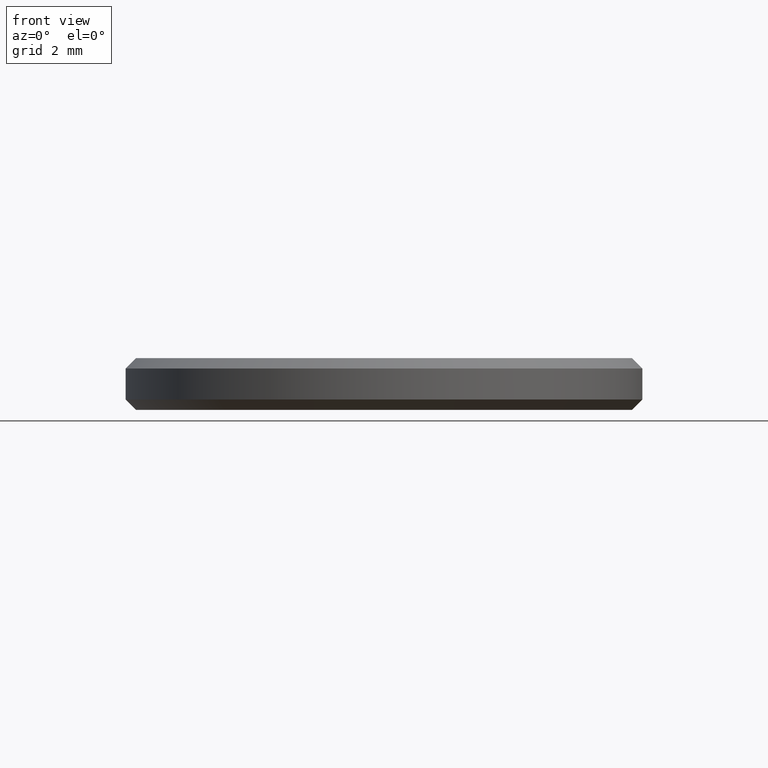
[diagram: clean part render]
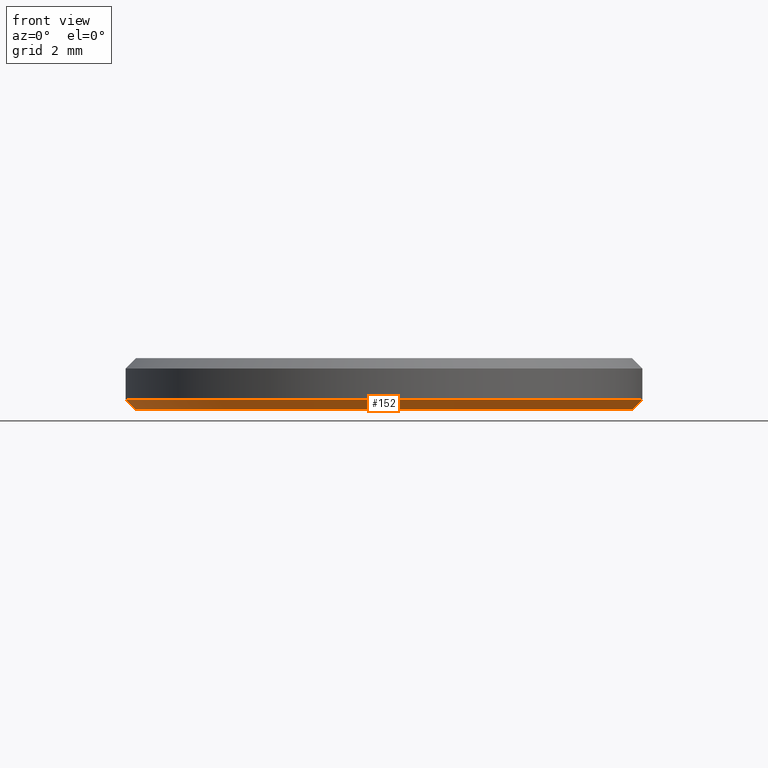
[diagram: same view with one face highlighted and labeled with its STEP entity id]
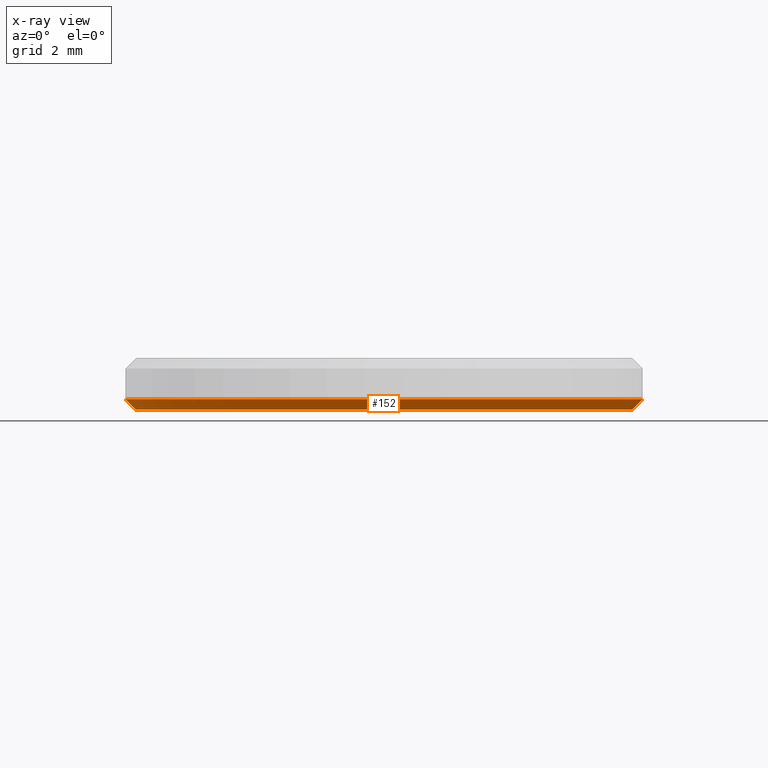
[diagram: x-ray of the same camera — body ghosted, the highlighted face saturated]
A machine part, front view. The second image highlights one B-rep face of the part: STEP entity #152.
The next image is the same camera in x-ray: the body ghosted, the highlighted face saturated — about 0% of this face is hidden behind the body in this view.
In plain terms, the highlighted conical surface has half-angle 45 deg.
Its self-contained STEP definition (entity closure, byte-faithful):
#2 = ORIENTED_EDGE ( 'NONE', *, *, #224, .F. ) ;
#3 = AXIS2_PLACEMENT_3D ( 'NONE', #187, #182, #12 ) ;
#12 = DIRECTION ( 'NONE',  ( 1.000000000000000000, 0.000000000000000000, 0.000000000000000000 ) ) ;
#14 = CARTESIAN_POINT ( 'NONE',  ( 0.000000000000000000, 0.000000000000000000, 0.1999999999999996503 ) ) ;
#17 = CARTESIAN_POINT ( 'NONE',  ( -4.799999999999999822, 6.000769315822029754E-16, 0.000000000000000000 ) ) ;
#22 = EDGE_CURVE ( 'NONE', #174, #156, #23, .T. ) ;
#23 = LINE ( 'NONE', #232, #231 ) ;
#27 = AXIS2_PLACEMENT_3D ( 'NONE', #14, #200, #88 ) ;
#48 = VERTEX_POINT ( 'NONE', #198 ) ;
#51 = CARTESIAN_POINT ( 'NONE',  ( 0.000000000000000000, 0.000000000000000000, 0.000000000000000000 ) ) ;
#81 = ORIENTED_EDGE ( 'NONE', *, *, #131, .F. ) ;
#88 = DIRECTION ( 'NONE',  ( 1.000000000000000000, 0.000000000000000000, 0.000000000000000000 ) ) ;
#96 = DIRECTION ( 'NONE',  ( 0.7071067811865490160, 0.000000000000000000, 0.7071067811865459074 ) ) ;
#107 = DIRECTION ( 'NONE',  ( 1.000000000000000000, 0.000000000000000000, 0.000000000000000000 ) ) ;
#108 = CARTESIAN_POINT ( 'NONE',  ( -5.000000000000000000, 6.123233995736765296E-16, 0.1999999999999996503 ) ) ;
#114 = VECTOR ( 'NONE', #180, 1000.000000000000000 ) ;
#115 = LINE ( 'NONE', #108, #114 ) ;
#123 = AXIS2_PLACEMENT_3D ( 'NONE', #51, #236, #107 ) ;
#127 = FACE_OUTER_BOUND ( 'NONE', #211, .T. ) ;
#131 = EDGE_CURVE ( 'NONE', #174, #208, #205, .T. ) ;
#132 = CARTESIAN_POINT ( 'NONE',  ( 4.799999999999999822, 0.000000000000000000, 0.000000000000000000 ) ) ;
#135 = CONICAL_SURFACE ( 'NONE', #27, 5.000000000000000000, 0.7853981633974503884 ) ;
#140 = ORIENTED_EDGE ( 'NONE', *, *, #186, .F. ) ;
#152 = ADVANCED_FACE ( 'NONE', ( #127 ), #135, .T. ) ;
#153 = ORIENTED_EDGE ( 'NONE', *, *, #22, .T. ) ;
#155 = CIRCLE ( 'NONE', #3, 5.000000000000000000 ) ;
#156 = VERTEX_POINT ( 'NONE', #165 ) ;
#165 = CARTESIAN_POINT ( 'NONE',  ( 5.000000000000000000, 6.123233995736766282E-16, 0.1999999999999996503 ) ) ;
#174 = VERTEX_POINT ( 'NONE', #132 ) ;
#180 = DIRECTION ( 'NONE',  ( -0.7071067811865490160, 8.659560562354950115E-17, 0.7071067811865459074 ) ) ;
#182 = DIRECTION ( 'NONE',  ( -0.000000000000000000, -0.000000000000000000, 1.000000000000000000 ) ) ;
#186 = EDGE_CURVE ( 'NONE', #208, #48, #115, .T. ) ;
#187 = CARTESIAN_POINT ( 'NONE',  ( 0.000000000000000000, 0.000000000000000000, 0.1999999999999996503 ) ) ;
#198 = CARTESIAN_POINT ( 'NONE',  ( -5.000000000000000000, 0.000000000000000000, 0.1999999999999996503 ) ) ;
#200 = DIRECTION ( 'NONE',  ( -0.000000000000000000, -0.000000000000000000, 1.000000000000000000 ) ) ;
#205 = CIRCLE ( 'NONE', #123, 4.799999999999999822 ) ;
#208 = VERTEX_POINT ( 'NONE', #17 ) ;
#211 = EDGE_LOOP ( 'NONE', ( #140, #81, #153, #2 ) ) ;
#224 = EDGE_CURVE ( 'NONE', #48, #156, #155, .T. ) ;
#231 = VECTOR ( 'NONE', #96, 1000.000000000000000 ) ;
#232 = CARTESIAN_POINT ( 'NONE',  ( 5.000000000000000000, 0.000000000000000000, 0.1999999999999996503 ) ) ;
#236 = DIRECTION ( 'NONE',  ( -0.000000000000000000, -0.000000000000000000, -1.000000000000000000 ) ) ;